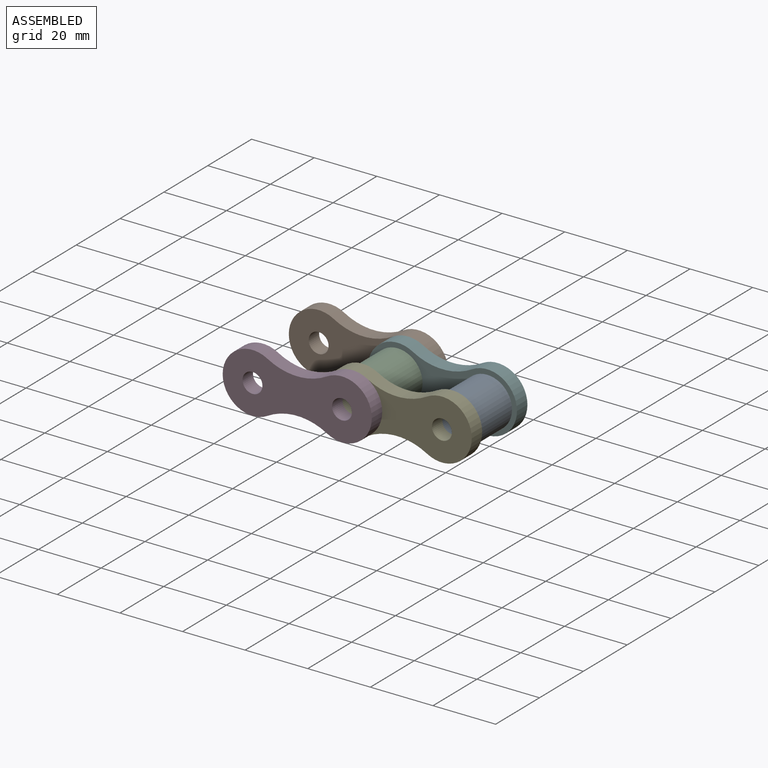
[diagram: assembled view]
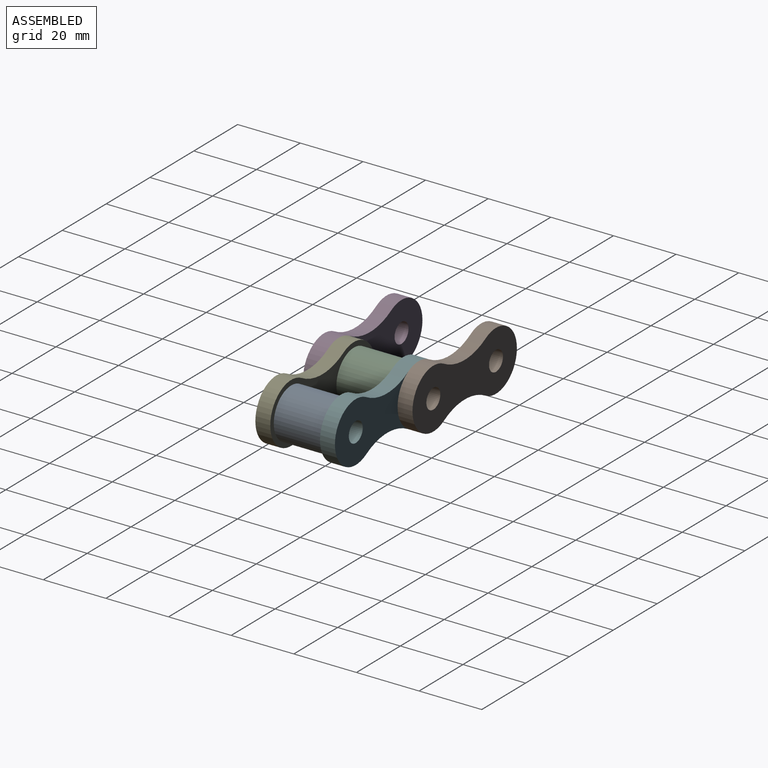
[diagram: assembled view, second angle]
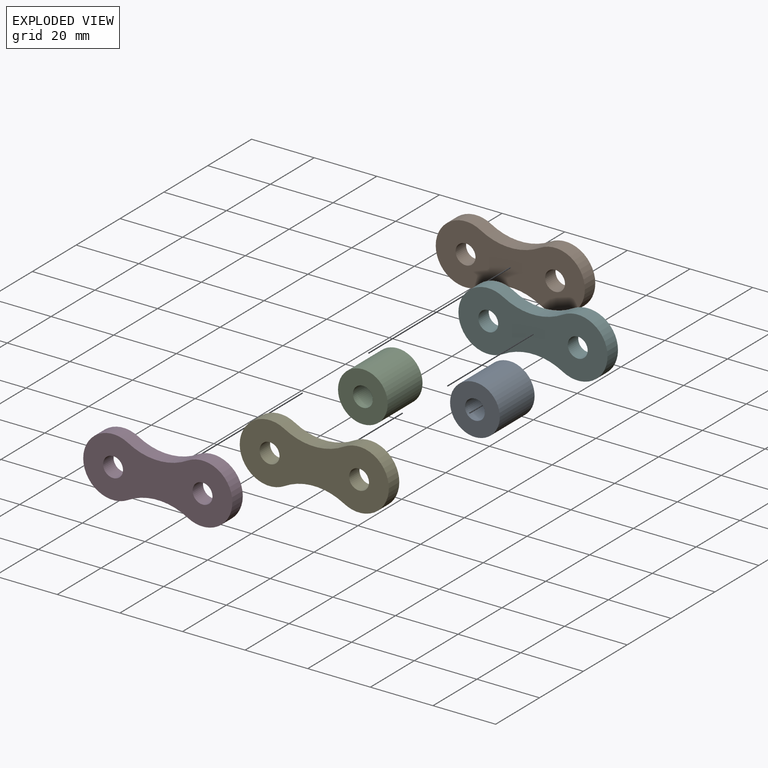
[diagram: exploded view]
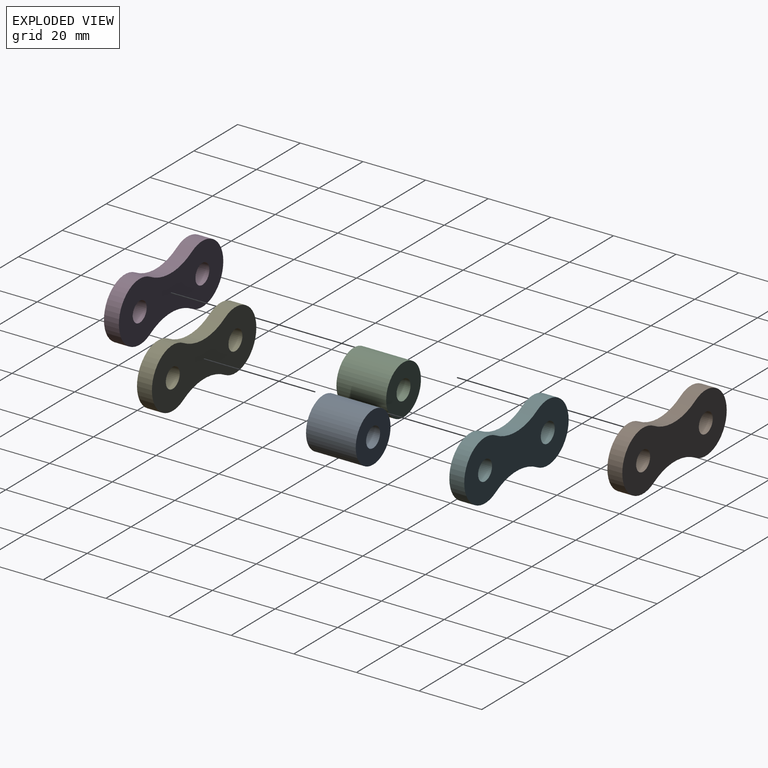
[diagram: exploded view, second angle]
ASSEMBLY  parts=6 mates=5
PART A: 4 faces, bbox 15.9x15.9x15.9 mm
  f0: cylinder r=3.17mm len=15.88mm, axis (0,1,0), area 316.7mm2, adj f2,f3
  f1: cylinder r=7.94mm len=15.88mm, axis (0,1,0), area 791.7mm2, adj f2,f3
  f2: plane 15.88x15.88mm, normal (0,-1,0), area 166.3mm2, adj f0,f1
  f3: plane 15.88x15.88mm, normal (0,1,0), area 166.3mm2, adj f0,f1
PART B: 8 faces, bbox 47.6x4.8x19.1 mm
  f0: cylinder r=19.05mm len=19.05mm, axis (0,1,0), area 95mm2, adj f1,f3,f4,f5
  f1: cylinder r=9.53mm len=19.05mm, axis (0,1,0), area 190mm2, adj f0,f2,f4,f5
  f2: cylinder r=19.05mm len=19.05mm, axis (0,1,0), area 95mm2, adj f1,f3,f4,f5
  f3: cylinder r=9.53mm len=19.05mm, axis (0,1,0), area 190mm2, adj f0,f2,f4,f5
  f4: plane 47.63x19.05mm, normal (0,-1,0), area 643.8mm2, adj f0,f1,f2,f3,f6,f7
  f5: plane 47.63x19.05mm, normal (0,1,0), area 643.8mm2, adj f0,f1,f2,f3,f6,f7
  f6: cylinder r=3.17mm len=6.35mm, axis (0,-1,0), area 95mm2, adj f4,f5
  f7: cylinder r=3.17mm len=6.35mm, axis (0,-1,0), area 95mm2, adj f4,f5
PART C: same geometry as A
PART D: same geometry as B
PART E: same geometry as B
PART F: same geometry as B
PLACE A t=(57.15,15.08,0)mm
PLACE B t=(0,30.16,0)mm
PLACE C t=(28.58,15.08,0)mm
PLACE D at identity fixed
PLACE E t=(28.58,4.76,0)mm
PLACE F t=(28.58,25.4,0)mm
MATE fastened D.f6 <-> E.f7  axis (0,1,0) through (28.58,2.38,0)mm
MATE fastened A.f0 <-> E.f6  axis (0,-1,0) through (57.15,7.14,0)mm
MATE fastened F.f7 <-> C.f1  axis (0,-1,0) through (28.58,23.02,0)mm
MATE fastened B.f6 <-> F.f1  axis (0,-1,0) through (28.58,27.78,0)mm
MATE fastened C.f0 <-> E.f7  axis (0,-1,0) through (28.58,7.14,0)mm
